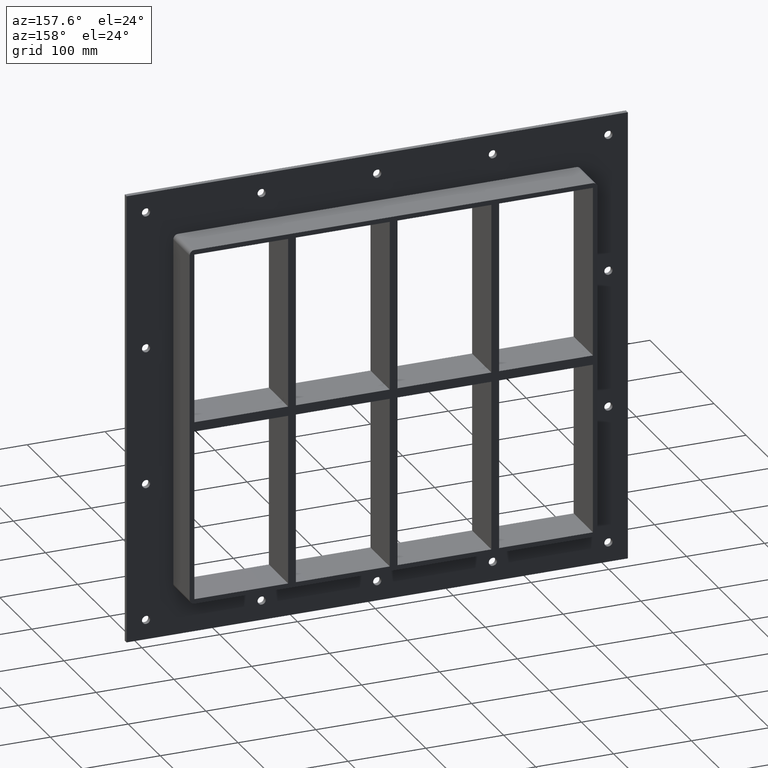
[diagram: clean part render]
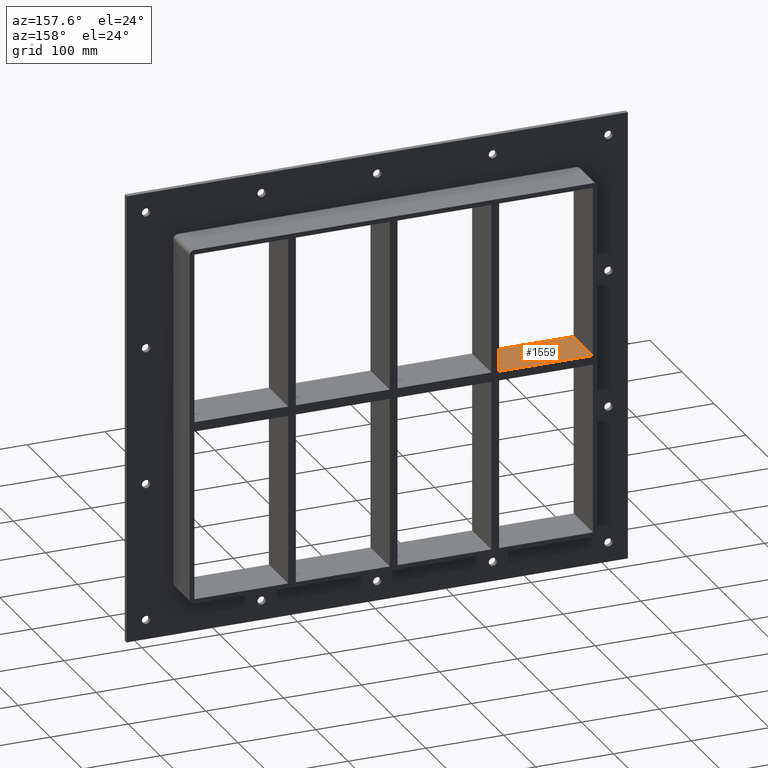
[diagram: same view with one face highlighted and labeled with its STEP entity id]
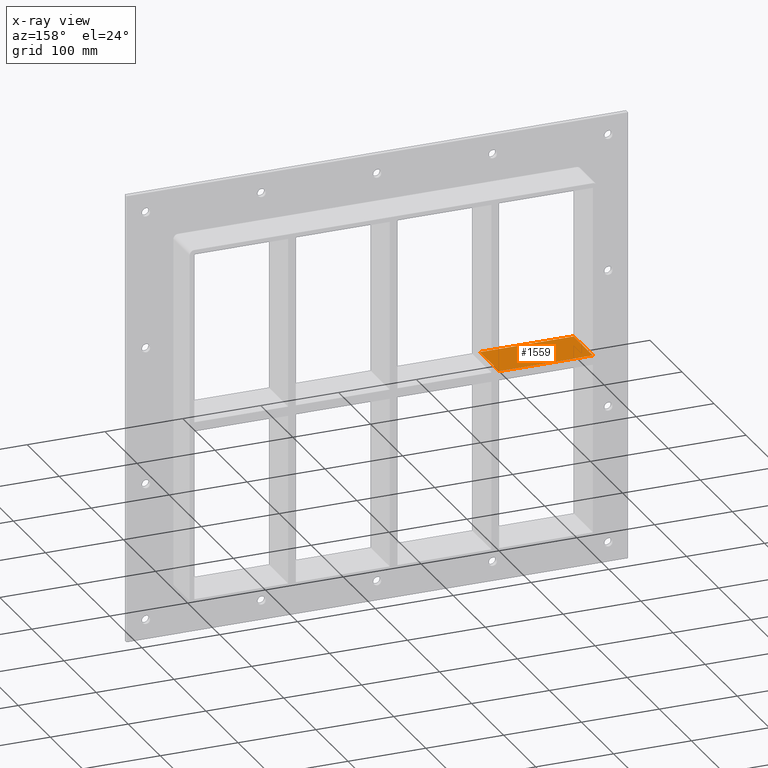
[diagram: x-ray of the same camera — body ghosted, the highlighted face saturated]
A machine part, auxiliary view. The second image highlights one B-rep face of the part: STEP entity #1559.
The next image is the same camera in x-ray: the body ghosted, the highlighted face saturated — about 0% of this face is hidden behind the body in this view.
In plain terms, the highlighted planar face has unit normal (0, 0, 1).
Its self-contained STEP definition (entity closure, byte-faithful):
#1052=CARTESIAN_POINT('',(-256.00000000000045,-3.0,5.999999999999943));
#1053=VERTEX_POINT('',#1052);
#1070=CARTESIAN_POINT('',(-135.50000000000219,-3.0,5.999999999999943));
#1071=VERTEX_POINT('',#1070);
#1078=CARTESIAN_POINT('',(-256.00000000000045,-3.0,5.999999999999943));
#1079=DIRECTION('',(1.0,0.0,0.0));
#1080=VECTOR('',#1079,120.49999999999829);
#1081=LINE('',#1078,#1080);
#1082=EDGE_CURVE('',#1053,#1071,#1081,.T.);
#1318=CARTESIAN_POINT('',(-256.00000000000045,57.0,5.999999999999943));
#1319=VERTEX_POINT('',#1318);
#1320=CARTESIAN_POINT('',(-135.50000000000219,57.0,5.999999999999943));
#1321=VERTEX_POINT('',#1320);
#1322=CARTESIAN_POINT('',(-256.00000000000045,57.0,5.999999999999943));
#1323=DIRECTION('',(1.0,0.0,0.0));
#1324=VECTOR('',#1323,120.49999999999829);
#1325=LINE('',#1322,#1324);
#1326=EDGE_CURVE('',#1319,#1321,#1325,.T.);
#1538=CARTESIAN_POINT('',(-256.00000000000045,-3.0,5.999999999999943));
#1539=DIRECTION('',(0.0,0.0,1.0));
#1540=DIRECTION('',(1.0,0.0,0.0));
#1541=AXIS2_PLACEMENT_3D('',#1538,#1539,#1540);
#1542=PLANE('',#1541);
#1543=CARTESIAN_POINT('',(-135.50000000000216,57.0,5.999999999999943));
#1544=DIRECTION('',(0.0,-1.0,0.0));
#1545=VECTOR('',#1544,60.0);
#1546=LINE('',#1543,#1545);
#1547=EDGE_CURVE('',#1321,#1071,#1546,.T.);
#1548=ORIENTED_EDGE('',*,*,#1547,.F.);
#1549=ORIENTED_EDGE('',*,*,#1326,.F.);
#1550=CARTESIAN_POINT('',(-256.00000000000011,-3.0,5.999999999999943));
#1551=DIRECTION('',(0.0,1.0,0.0));
#1552=VECTOR('',#1551,60.000000000000007);
#1553=LINE('',#1550,#1552);
#1554=EDGE_CURVE('',#1053,#1319,#1553,.T.);
#1555=ORIENTED_EDGE('',*,*,#1554,.F.);
#1556=ORIENTED_EDGE('',*,*,#1082,.T.);
#1557=EDGE_LOOP('',(#1548,#1549,#1555,#1556));
#1558=FACE_OUTER_BOUND('',#1557,.T.);
#1559=ADVANCED_FACE('',(#1558),#1542,.T.);